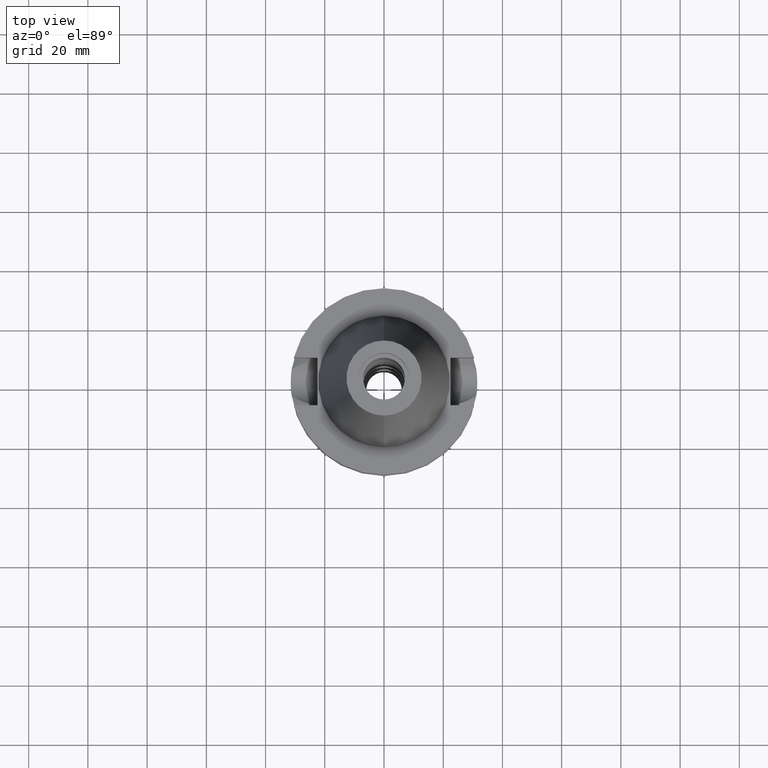
[diagram: clean part render]
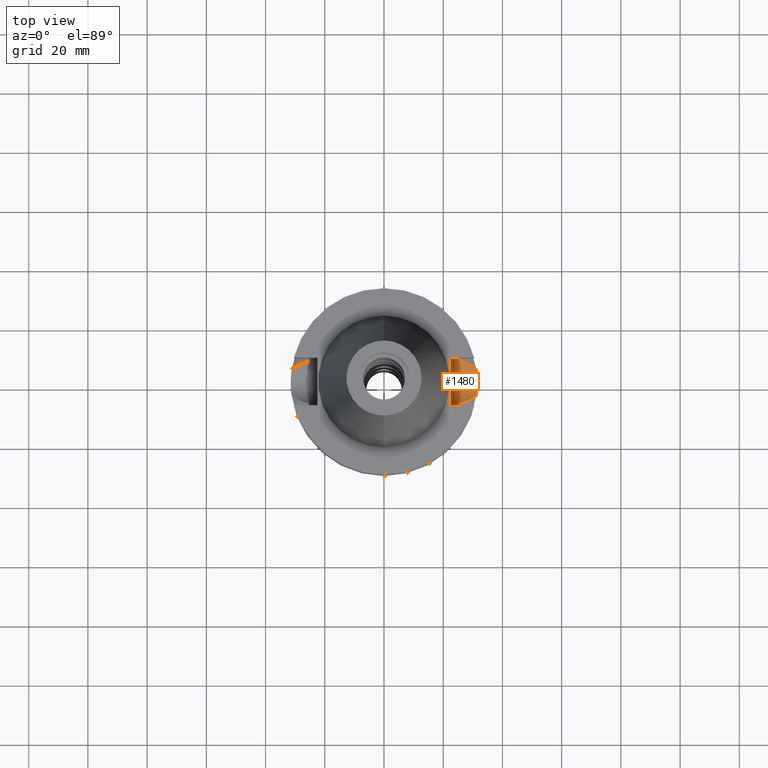
[diagram: same view with one face highlighted and labeled with its STEP entity id]
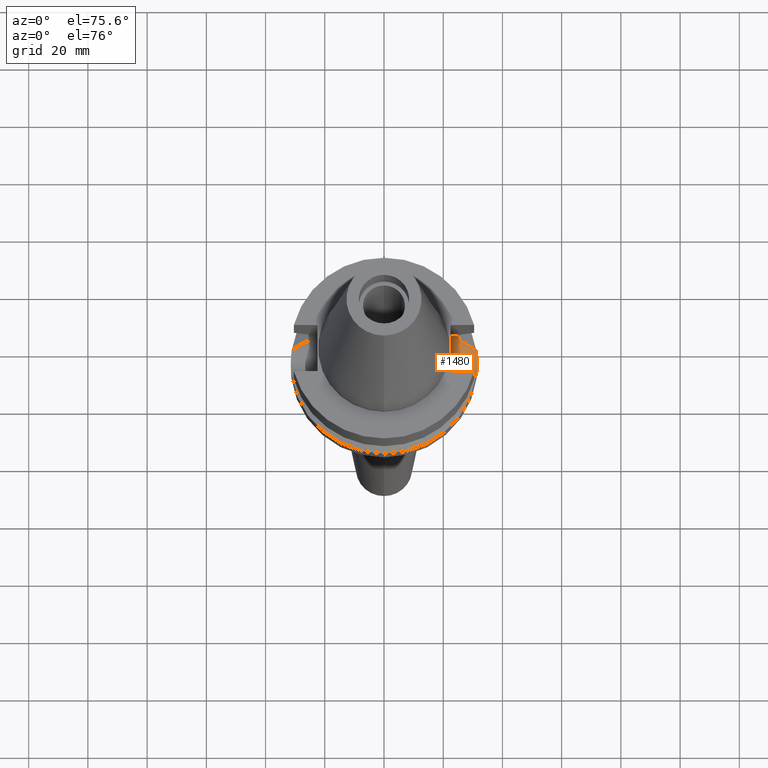
[diagram: same view with one face highlighted and labeled with its STEP entity id]
A machine part, top view. The second image highlights one B-rep face of the part: STEP entity #1480.
A second angle (auxiliary view) of the same face is appended — the face is thin or edge-on in the first view.
In plain terms, the highlighted cylindrical surface (edge-blend (fillet) strip) has radius 8.05 mm, axis along (1, 0, 0).
Its self-contained STEP definition (entity closure, byte-faithful):
#231=CARTESIAN_POINT('',(2.524772266958E1,-8.05E0,-1.495E1));
#232=CARTESIAN_POINT('',(2.524772266958E1,-8.05E0,-1.538864973458E1));
#233=CARTESIAN_POINT('',(2.527037667117E1,-7.979489789330E0,-1.625511069971E1));
#234=CARTESIAN_POINT('',(2.536989455534E1,-7.660317593038E0,-1.753933016913E1));
#235=CARTESIAN_POINT('',(2.547274921989E1,-7.310100799879E0,-1.835107577126E1));
#236=CARTESIAN_POINT('',(2.553175183775E1,-7.097862220093E0,-1.874774300139E1));
#314=CARTESIAN_POINT('',(2.25E1,0.E0,-1.495E1));
#315=DIRECTION('',(-1.E0,0.E0,0.E0));
#316=DIRECTION('',(0.E0,1.E0,0.E0));
#317=AXIS2_PLACEMENT_3D('',#314,#315,#316);
#322=CARTESIAN_POINT('',(2.25E1,0.E0,-1.495E1));
#323=DIRECTION('',(-1.E0,0.E0,0.E0));
#324=DIRECTION('',(0.E0,0.E0,-1.E0));
#325=AXIS2_PLACEMENT_3D('',#322,#323,#324);
#371=CARTESIAN_POINT('',(2.553175183775E1,7.097862220093E0,-1.874774300139E1));
#372=CARTESIAN_POINT('',(2.547274155935E1,7.310128355644E0,-1.835102427040E1));
#373=CARTESIAN_POINT('',(2.536988024964E1,7.660364704087E0,-1.753920094811E1));
#374=CARTESIAN_POINT('',(2.527037050211E1,7.979508969674E0,-1.625497353179E1));
#375=CARTESIAN_POINT('',(2.524772266958E1,8.05E0,-1.538859071303E1));
#376=CARTESIAN_POINT('',(2.524772266958E1,8.05E0,-1.495E1));
#484=CARTESIAN_POINT('',(2.553175183775E1,-7.097862220093E0,-1.874774300139E1));
#485=CARTESIAN_POINT('',(2.631972393539E1,-6.881262192899E0,-1.915256163955E1));
#486=CARTESIAN_POINT('',(2.779048512449E1,-6.386654180471E0,-1.990609983735E1));
#487=CARTESIAN_POINT('',(2.960192017576E1,-5.545090232894E0,-2.083115958669E1));
#488=CARTESIAN_POINT('',(3.068667056188E1,-4.859050215139E0,-2.138385302686E1));
#489=CARTESIAN_POINT('',(3.117899877609E1,-4.485536235554E0,-2.163449434733E1));
#510=DIRECTION('',(-1.E0,-1.551559937893E-14,0.E0));
#511=VECTOR('',#510,2.747722669580E0);
#512=CARTESIAN_POINT('',(2.524772266958E1,-8.05E0,-1.495E1));
#513=LINE('',#512,#511);
#517=DIRECTION('',(1.E0,-1.551559937893E-14,0.E0));
#518=VECTOR('',#517,2.747722669580E0);
#519=CARTESIAN_POINT('',(2.25E1,8.05E0,-1.495E1));
#520=LINE('',#519,#518);
#524=CARTESIAN_POINT('',(3.117899877609E1,-4.485536235554E0,-2.163449434733E1));
#525=CARTESIAN_POINT('',(3.124367220158E1,-4.035990730149E0,-2.193615555748E1));
#526=CARTESIAN_POINT('',(3.135871158456E1,-3.100629097606E0,-2.243541244984E1));
#527=CARTESIAN_POINT('',(3.147358573412E1,-1.571562217149E0,-2.289763062564E1));
#528=CARTESIAN_POINT('',(3.15E1,-5.304194873049E-1,-2.3E1));
#529=CARTESIAN_POINT('',(3.15E1,0.E0,-2.3E1));
#534=CARTESIAN_POINT('',(3.15E1,0.E0,-2.3E1));
#535=CARTESIAN_POINT('',(3.15E1,5.305046422132E-1,-2.3E1));
#536=CARTESIAN_POINT('',(3.147357697103E1,1.571759706119E0,-2.289759691925E1));
#537=CARTESIAN_POINT('',(3.135869289629E1,3.100801652069E0,-2.243533471996E1));
#538=CARTESIAN_POINT('',(3.124366261696E1,4.036057352875E0,-2.193611085123E1));
#539=CARTESIAN_POINT('',(3.117899877609E1,4.485536235554E0,-2.163449434733E1));
#577=CARTESIAN_POINT('',(3.117899877609E1,4.485536235554E0,-2.163449434733E1));
#578=CARTESIAN_POINT('',(3.064740053451E1,4.888843153625E0,-2.136386089309E1));
#579=CARTESIAN_POINT('',(2.950206645877E1,5.599446060623E0,-2.078023727299E1));
#580=CARTESIAN_POINT('',(2.770430347253E1,6.418082540591E0,-1.986199514691E1));
#581=CARTESIAN_POINT('',(2.628216551073E1,6.891586360250E0,-1.913326609549E1));
#582=CARTESIAN_POINT('',(2.553175183775E1,7.097862220093E0,-1.874774300139E1));
#1022=VERTEX_POINT('',#534);
#1023=VERTEX_POINT('',#539);
#1024=VERTEX_POINT('',#524);
#1029=VERTEX_POINT('',#484);
#1030=VERTEX_POINT('',#231);
#1031=CARTESIAN_POINT('',(2.25E1,-8.05E0,-1.495E1));
#1032=VERTEX_POINT('',#1031);
#1033=CARTESIAN_POINT('',(2.25E1,0.E0,-2.3E1));
#1034=VERTEX_POINT('',#1033);
#1035=CARTESIAN_POINT('',(2.25E1,8.05E0,-1.495E1));
#1036=VERTEX_POINT('',#1035);
#1037=CARTESIAN_POINT('',(2.524772266958E1,8.05E0,-1.495E1));
#1038=VERTEX_POINT('',#1037);
#1039=VERTEX_POINT('',#371);
#1460=CARTESIAN_POINT('',(2.25E1,0.E0,-1.495E1));
#1461=DIRECTION('',(1.E0,0.E0,0.E0));
#1462=DIRECTION('',(0.E0,0.E0,-1.E0));
#1463=AXIS2_PLACEMENT_3D('',#1460,#1461,#1462);
#1464=CYLINDRICAL_SURFACE('',#1463,8.05E0);
#1466=ORIENTED_EDGE('',*,*,#1465,.F.);
#1468=ORIENTED_EDGE('',*,*,#1467,.F.);
#1469=ORIENTED_EDGE('',*,*,#1451,.F.);
#1470=ORIENTED_EDGE('',*,*,#1260,.F.);
#1471=ORIENTED_EDGE('',*,*,#1314,.T.);
#1472=ORIENTED_EDGE('',*,*,#1329,.F.);
#1473=ORIENTED_EDGE('',*,*,#1327,.F.);
#1474=ORIENTED_EDGE('',*,*,#1342,.T.);
#1475=ORIENTED_EDGE('',*,*,#1366,.F.);
#1477=ORIENTED_EDGE('',*,*,#1476,.F.);
#1478=EDGE_LOOP('',(#1466,#1468,#1469,#1470,#1471,#1472,#1473,#1474,#1475,
#1477));
#1479=FACE_OUTER_BOUND('',#1478,.F.);
#237=B_SPLINE_CURVE_WITH_KNOTS('',3,(#231,#232,#233,#234,#235,#236),
.UNSPECIFIED.,.F.,.F.,(4,1,1,4),(0.E0,3.333333333333E-1,6.666666666667E-1,1.E0),
.UNSPECIFIED.);
#318=CIRCLE('',#317,8.05E0);
#326=CIRCLE('',#325,8.05E0);
#377=B_SPLINE_CURVE_WITH_KNOTS('',3,(#371,#372,#373,#374,#375,#376),
.UNSPECIFIED.,.F.,.F.,(4,1,1,4),(0.E0,3.333333333333E-1,6.666666666667E-1,1.E0),
.UNSPECIFIED.);
#490=B_SPLINE_CURVE_WITH_KNOTS('',3,(#484,#485,#486,#487,#488,#489),
.UNSPECIFIED.,.F.,.F.,(4,1,1,4),(0.E0,3.333333333333E-1,6.666666666667E-1,1.E0),
.UNSPECIFIED.);
#530=B_SPLINE_CURVE_WITH_KNOTS('',3,(#524,#525,#526,#527,#528,#529),
.UNSPECIFIED.,.F.,.F.,(4,1,1,4),(0.E0,3.333333333333E-1,6.666666666667E-1,1.E0),
.UNSPECIFIED.);
#540=B_SPLINE_CURVE_WITH_KNOTS('',3,(#534,#535,#536,#537,#538,#539),
.UNSPECIFIED.,.F.,.F.,(4,1,1,4),(0.E0,3.333333333333E-1,6.666666666667E-1,1.E0),
.UNSPECIFIED.);
#583=B_SPLINE_CURVE_WITH_KNOTS('',3,(#577,#578,#579,#580,#581,#582),
.UNSPECIFIED.,.F.,.F.,(4,1,1,4),(0.E0,3.333333333333E-1,6.666666666667E-1,1.E0),
.UNSPECIFIED.);
#1260=EDGE_CURVE('',#1030,#1029,#237,.T.);
#1314=EDGE_CURVE('',#1030,#1032,#513,.T.);
#1327=EDGE_CURVE('',#1036,#1034,#318,.T.);
#1329=EDGE_CURVE('',#1034,#1032,#326,.T.);
#1342=EDGE_CURVE('',#1036,#1038,#520,.T.);
#1366=EDGE_CURVE('',#1039,#1038,#377,.T.);
#1451=EDGE_CURVE('',#1029,#1024,#490,.T.);
#1465=EDGE_CURVE('',#1022,#1023,#540,.T.);
#1467=EDGE_CURVE('',#1024,#1022,#530,.T.);
#1476=EDGE_CURVE('',#1023,#1039,#583,.T.);
#1480=ADVANCED_FACE('',(#1479),#1464,.F.);